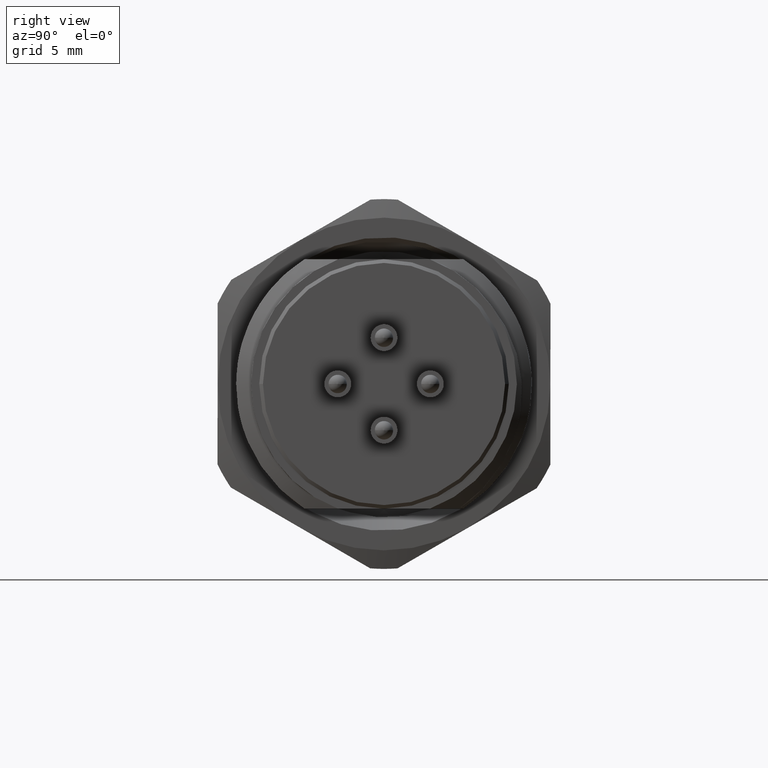
[diagram: clean part render]
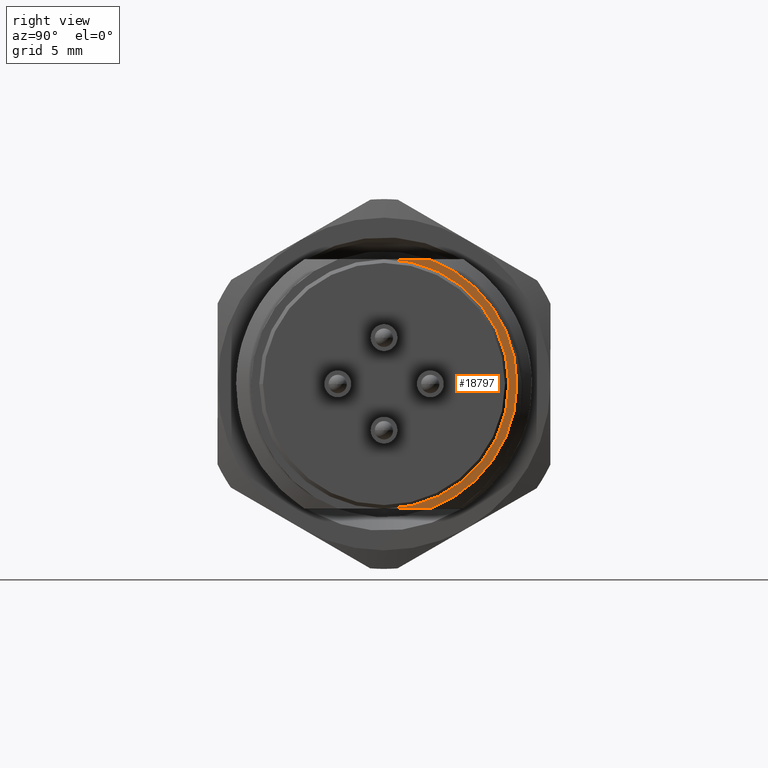
[diagram: same view with one face highlighted and labeled with its STEP entity id]
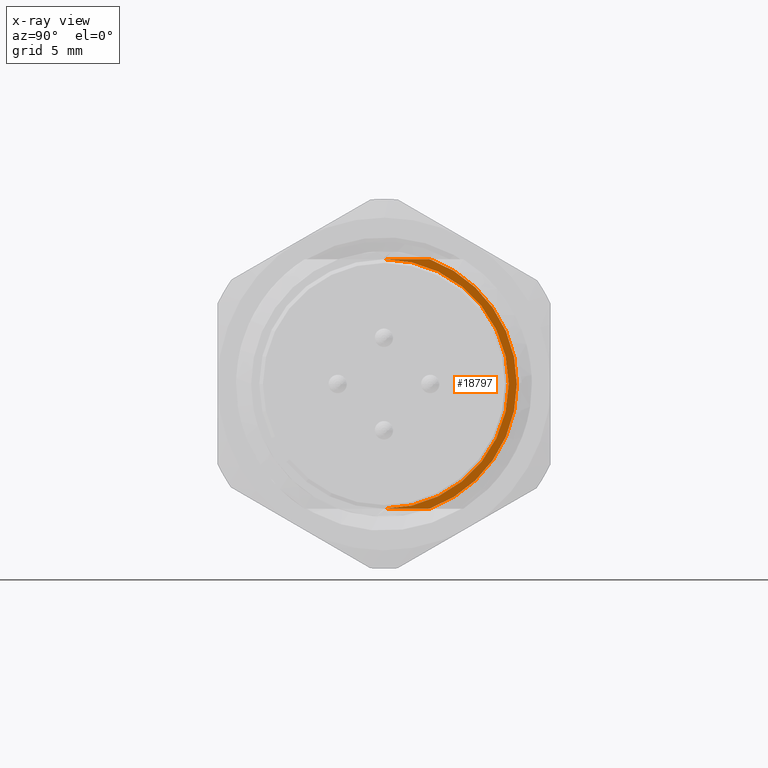
[diagram: x-ray of the same camera — body ghosted, the highlighted face saturated]
A machine part, right view. The second image highlights one B-rep face of the part: STEP entity #18797.
The next image is the same camera in x-ray: the body ghosted, the highlighted face saturated — about 0% of this face is hidden behind the body in this view.
In plain terms, the highlighted planar face has unit normal (1, 0, 0).
Its self-contained STEP definition (entity closure, byte-faithful):
#1837=DIRECTION('',(0.E0,-1.E0,0.E0));
#1838=VECTOR('',#1837,2.470797600632E0);
#1839=CARTESIAN_POINT('',(2.09E1,2.470797600632E0,6.75E0));
#1840=LINE('',#1839,#1838);
#2690=DIRECTION('',(0.E0,1.E0,1.581669018984E-14));
#2691=VECTOR('',#2690,2.470798251578E0);
#2692=CARTESIAN_POINT('',(2.09E1,0.E0,-6.75E0));
#2693=LINE('',#2692,#2691);
#3781=CARTESIAN_POINT('',(2.09E1,0.E0,0.E0));
#3782=DIRECTION('',(-1.E0,0.E0,0.E0));
#3783=DIRECTION('',(0.E0,3.437393227014E-1,9.390651085142E-1));
#3784=AXIS2_PLACEMENT_3D('',#3781,#3782,#3783);
#3786=CARTESIAN_POINT('',(2.09E1,0.E0,0.E0));
#3787=DIRECTION('',(-1.E0,0.E0,0.E0));
#3788=DIRECTION('',(0.E0,1.E0,4.744859671186E-14));
#3789=AXIS2_PLACEMENT_3D('',#3786,#3787,#3788);
#3791=CARTESIAN_POINT('',(2.09E1,0.E0,0.E0));
#3792=DIRECTION('',(1.E0,0.E0,0.E0));
#3793=DIRECTION('',(0.E0,0.E0,-1.E0));
#3794=AXIS2_PLACEMENT_3D('',#3791,#3792,#3793);
#3796=CARTESIAN_POINT('',(2.09E1,0.E0,0.E0));
#3797=DIRECTION('',(1.E0,0.E0,0.E0));
#3798=DIRECTION('',(0.E0,1.E0,0.E0));
#3799=AXIS2_PLACEMENT_3D('',#3796,#3797,#3798);
#11892=CARTESIAN_POINT('',(2.09E1,6.75E0,2.834809660737E-13));
#11893=VERTEX_POINT('',#11892);
#11894=CARTESIAN_POINT('',(2.09E1,2.470797600632E0,6.75E0));
#11895=CARTESIAN_POINT('',(2.09E1,0.E0,6.75E0));
#11896=VERTEX_POINT('',#11894);
#11897=VERTEX_POINT('',#11895);
#11898=CARTESIAN_POINT('',(2.09E1,7.188E0,3.419486915845E-13));
#11899=VERTEX_POINT('',#11898);
#11900=CARTESIAN_POINT('',(2.09E1,2.470798251578E0,-6.75E0));
#11901=VERTEX_POINT('',#11900);
#11902=CARTESIAN_POINT('',(2.09E1,0.E0,-6.75E0));
#11903=VERTEX_POINT('',#11902);
#18782=CARTESIAN_POINT('',(2.09E1,3.594E0,2.753353101070E-14));
#18783=DIRECTION('',(1.E0,0.E0,0.E0));
#18784=DIRECTION('',(0.E0,-1.E0,0.E0));
#18785=AXIS2_PLACEMENT_3D('',#18782,#18783,#18784);
#18786=PLANE('',#18785);
#18787=ORIENTED_EDGE('',*,*,#16234,.F.);
#18789=ORIENTED_EDGE('',*,*,#18788,.T.);
#18791=ORIENTED_EDGE('',*,*,#18790,.T.);
#18792=ORIENTED_EDGE('',*,*,#17392,.F.);
#18793=ORIENTED_EDGE('',*,*,#18775,.T.);
#18794=ORIENTED_EDGE('',*,*,#18314,.T.);
#18795=EDGE_LOOP('',(#18787,#18789,#18791,#18792,#18793,#18794));
#18796=FACE_OUTER_BOUND('',#18795,.F.);
#18797=ADVANCED_FACE('',(#18796),#18786,.T.);
#3785=CIRCLE('',#3784,7.188E0);
#3790=CIRCLE('',#3789,7.188E0);
#3795=CIRCLE('',#3794,6.75E0);
#3800=CIRCLE('',#3799,6.75E0);
#16234=EDGE_CURVE('',#11896,#11897,#1840,.T.);
#17392=EDGE_CURVE('',#11903,#11901,#2693,.T.);
#18314=EDGE_CURVE('',#11893,#11897,#3800,.T.);
#18775=EDGE_CURVE('',#11903,#11893,#3795,.T.);
#18788=EDGE_CURVE('',#11896,#11899,#3785,.T.);
#18790=EDGE_CURVE('',#11899,#11901,#3790,.T.);